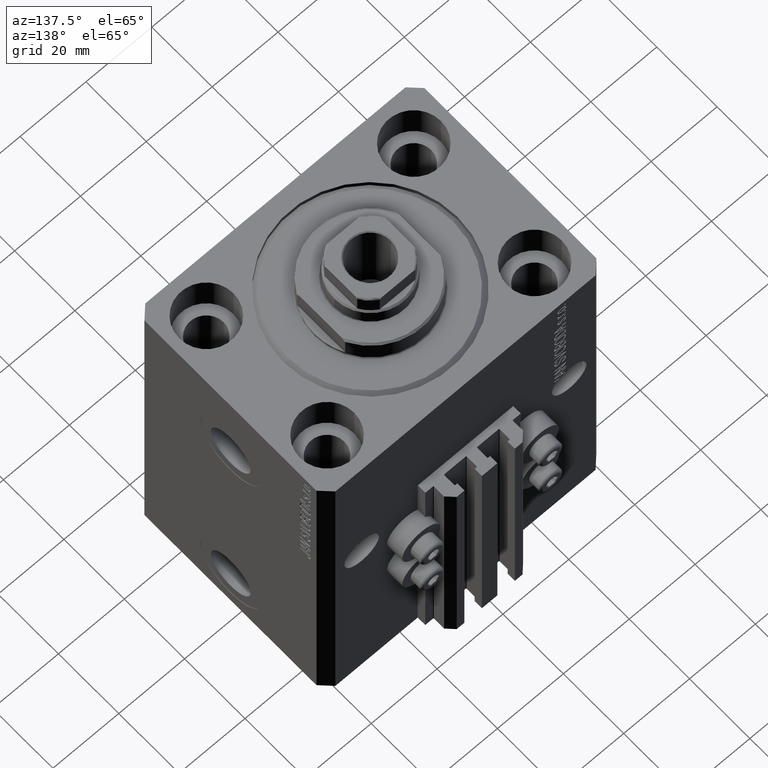
[diagram: clean part render]
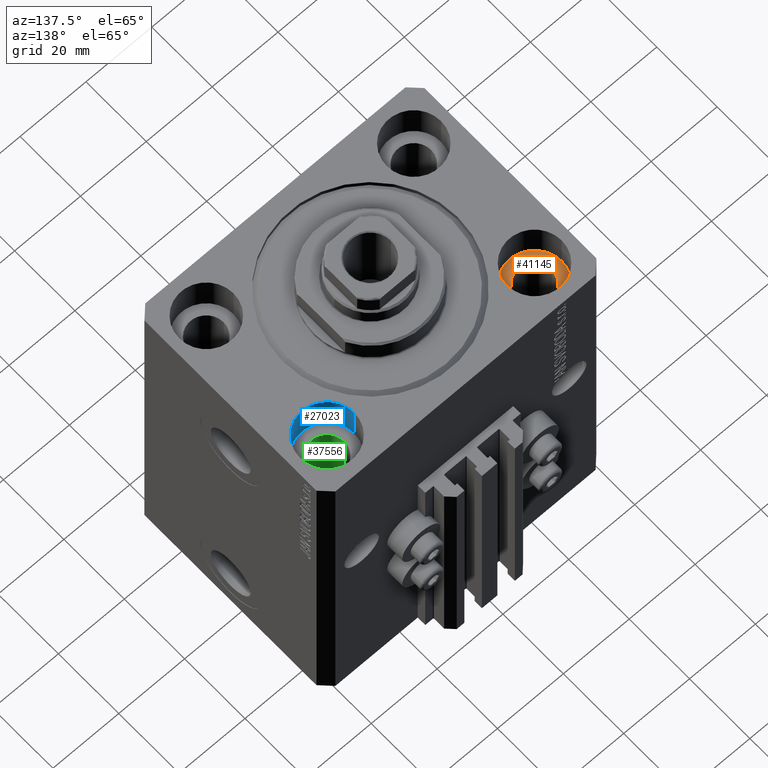
[diagram: same view with three faces highlighted in distinct colors, each labeled with its STEP entity id]
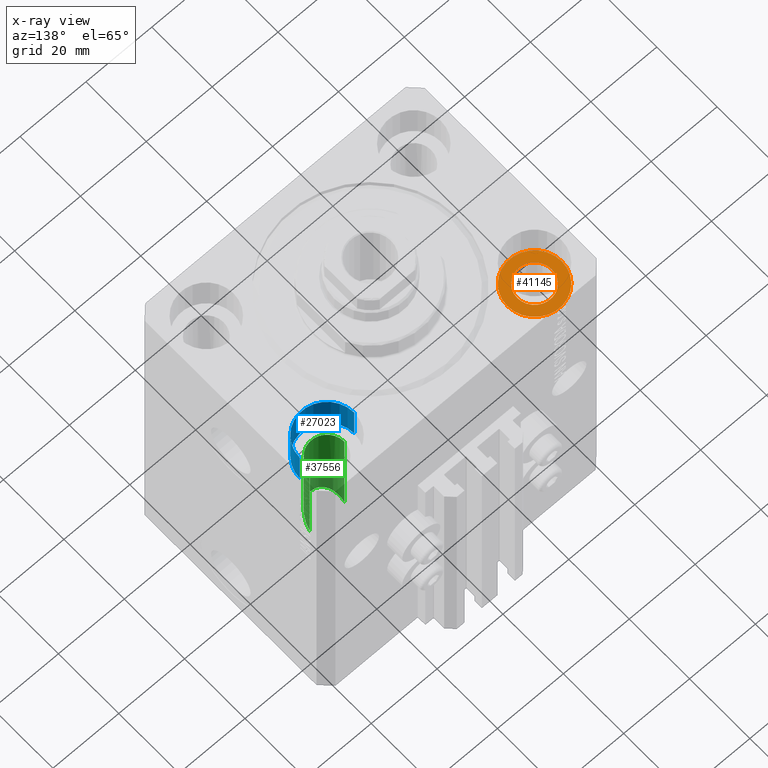
[diagram: x-ray of the same camera — body ghosted, the three highlighted faces saturated]
A machine part, auxiliary view with three faces highlighted in distinct colors.
The next image is the same camera in x-ray (body ghosted, the three faces saturated) — at least one of them is partly hidden behind the body in this view.
Their STEP definitions:

[orange] entity #41145 — the highlighted planar face has unit normal (0, 0, 1).
#1260 = VERTEX_POINT ( 'NONE', #19480 ) ;
#1480 = DIRECTION ( 'NONE',  ( 0.000000000000000000, 0.000000000000000000, 1.000000000000000000 ) ) ;
#1498 = DIRECTION ( 'NONE',  ( 1.000000000000000000, 0.000000000000000000, 0.000000000000000000 ) ) ;
#2207 = ORIENTED_EDGE ( 'NONE', *, *, #32252, .T. ) ;
#2680 = DIRECTION ( 'NONE',  ( 1.000000000000000000, 0.000000000000000000, -0.000000000000000000 ) ) ;
#2692 = ORIENTED_EDGE ( 'NONE', *, *, #45427, .T. ) ;
#5307 = CIRCLE ( 'NONE', #30149, 8.250000000000000000 ) ;
#6064 = VERTEX_POINT ( 'NONE', #35782 ) ;
#8805 = CARTESIAN_POINT ( 'NONE',  ( -31.50000000000000000, 20.00000000000000000, -11.00000000000000000 ) ) ;
#9158 = EDGE_CURVE ( 'NONE', #47078, #1260, #25269, .T. ) ;
#10219 = VERTEX_POINT ( 'NONE', #36517 ) ;
#12023 = AXIS2_PLACEMENT_3D ( 'NONE', #26776, #1480, #19499 ) ;
#12663 = EDGE_CURVE ( 'NONE', #1260, #47078, #14478, .T. ) ;
#14478 = CIRCLE ( 'NONE', #12023, 5.250000000000000888 ) ;
#15701 = CARTESIAN_POINT ( 'NONE',  ( -31.50000000000000000, 20.00000000000000000, -11.00000000000000000 ) ) ;
#15887 = CARTESIAN_POINT ( 'NONE',  ( -36.75000000000000000, 20.00000000000000000, -11.00000000000000000 ) ) ;
#17097 = DIRECTION ( 'NONE',  ( 1.000000000000000000, 0.000000000000000000, 0.000000000000000000 ) ) ;
#17768 = PLANE ( 'NONE',  #36356 ) ;
#19480 = CARTESIAN_POINT ( 'NONE',  ( -26.25000000000000000, 20.00000000000000000, -11.00000000000000000 ) ) ;
#19499 = DIRECTION ( 'NONE',  ( 1.000000000000000000, 0.000000000000000000, 0.000000000000000000 ) ) ;
#20486 = DIRECTION ( 'NONE',  ( 1.000000000000000000, 0.000000000000000000, 0.000000000000000000 ) ) ;
#25269 = CIRCLE ( 'NONE', #42358, 5.250000000000000888 ) ;
#26776 = CARTESIAN_POINT ( 'NONE',  ( -31.50000000000000000, 20.00000000000000000, -11.00000000000000000 ) ) ;
#27049 = DIRECTION ( 'NONE',  ( 0.000000000000000000, 0.000000000000000000, 1.000000000000000000 ) ) ;
#27975 = FACE_BOUND ( 'NONE', #31028, .T. ) ;
#28460 = FACE_OUTER_BOUND ( 'NONE', #32245, .T. ) ;
#30149 = AXIS2_PLACEMENT_3D ( 'NONE', #8805, #42370, #1498 ) ;
#30573 = ORIENTED_EDGE ( 'NONE', *, *, #9158, .F. ) ;
#31028 = EDGE_LOOP ( 'NONE', ( #35194, #30573 ) ) ;
#32245 = EDGE_LOOP ( 'NONE', ( #2692, #2207 ) ) ;
#32252 = EDGE_CURVE ( 'NONE', #10219, #6064, #38352, .T. ) ;
#32589 = CARTESIAN_POINT ( 'NONE',  ( -31.50000000000000000, 20.00000000000000000, -11.00000000000000000 ) ) ;
#35194 = ORIENTED_EDGE ( 'NONE', *, *, #12663, .F. ) ;
#35782 = CARTESIAN_POINT ( 'NONE',  ( -23.25000000000000000, 20.00000000000000000, -11.00000000000000000 ) ) ;
#36002 = DIRECTION ( 'NONE',  ( 0.000000000000000000, 0.000000000000000000, 1.000000000000000000 ) ) ;
#36356 = AXIS2_PLACEMENT_3D ( 'NONE', #32589, #36002, #2680 ) ;
#36517 = CARTESIAN_POINT ( 'NONE',  ( -39.75000000000000000, 20.00000000000000000, -11.00000000000000000 ) ) ;
#38352 = CIRCLE ( 'NONE', #44562, 8.250000000000000000 ) ;
#39471 = DIRECTION ( 'NONE',  ( 0.000000000000000000, 0.000000000000000000, 1.000000000000000000 ) ) ;
#41145 = ADVANCED_FACE ( 'NONE', ( #27975, #28460 ), #17768, .T. ) ;
#42358 = AXIS2_PLACEMENT_3D ( 'NONE', #42614, #27049, #20486 ) ;
#42370 = DIRECTION ( 'NONE',  ( 0.000000000000000000, 0.000000000000000000, 1.000000000000000000 ) ) ;
#42614 = CARTESIAN_POINT ( 'NONE',  ( -31.50000000000000000, 20.00000000000000000, -11.00000000000000000 ) ) ;
#44562 = AXIS2_PLACEMENT_3D ( 'NONE', #15701, #39471, #17097 ) ;
#45427 = EDGE_CURVE ( 'NONE', #6064, #10219, #5307, .T. ) ;
#47078 = VERTEX_POINT ( 'NONE', #15887 ) ;

[blue] entity #27023 — the highlighted cylindrical surface (partial cylindrical patch) has radius 8.25 mm, axis along (0, 0, 1).
#388 = CIRCLE ( 'NONE', #28365, 8.249999999999992895 ) ;
#1741 = DIRECTION ( 'NONE',  ( 1.000000000000000000, 0.000000000000000000, 0.000000000000000000 ) ) ;
#3389 = AXIS2_PLACEMENT_3D ( 'NONE', #10612, #11076, #7427 ) ;
#4493 = ORIENTED_EDGE ( 'NONE', *, *, #42063, .T. ) ;
#5518 = ORIENTED_EDGE ( 'NONE', *, *, #42584, .F. ) ;
#6752 = VERTEX_POINT ( 'NONE', #33847 ) ;
#7427 = DIRECTION ( 'NONE',  ( 1.000000000000000000, 0.000000000000000000, 0.000000000000000000 ) ) ;
#8311 = AXIS2_PLACEMENT_3D ( 'NONE', #19194, #27205, #30615 ) ;
#9162 = DIRECTION ( 'NONE',  ( -0.000000000000000000, -0.000000000000000000, 1.000000000000000000 ) ) ;
#9200 = EDGE_CURVE ( 'NONE', #13592, #34089, #388, .T. ) ;
#10612 = CARTESIAN_POINT ( 'NONE',  ( 31.50000000000000000, 20.00000000000001066, -11.00000000000000000 ) ) ;
#11076 = DIRECTION ( 'NONE',  ( -0.000000000000000000, -0.000000000000000000, 1.000000000000000000 ) ) ;
#11255 = ORIENTED_EDGE ( 'NONE', *, *, #38249, .T. ) ;
#12560 = CARTESIAN_POINT ( 'NONE',  ( 39.74999999999999289, 20.00000000000001066, -11.00000000000000000 ) ) ;
#13592 = VERTEX_POINT ( 'NONE', #39316 ) ;
#14732 = DIRECTION ( 'NONE',  ( -0.000000000000000000, -0.000000000000000000, 1.000000000000000000 ) ) ;
#16118 = CARTESIAN_POINT ( 'NONE',  ( 31.50000000000000000, 20.00000000000001066, -11.00000000000000000 ) ) ;
#16456 = LINE ( 'NONE', #12560, #27831 ) ;
#17255 = LINE ( 'NONE', #43036, #37788 ) ;
#18930 = VERTEX_POINT ( 'NONE', #45154 ) ;
#19194 = CARTESIAN_POINT ( 'NONE',  ( 31.50000000000000000, 20.00000000000001066, 0.000000000000000000 ) ) ;
#24596 = CARTESIAN_POINT ( 'NONE',  ( 39.74999999999999289, 20.00000000000001066, -11.00000000000000000 ) ) ;
#27023 = ADVANCED_FACE ( 'NONE', ( #28863 ), #37101, .F. ) ;
#27205 = DIRECTION ( 'NONE',  ( 0.000000000000000000, 0.000000000000000000, 1.000000000000000000 ) ) ;
#27831 = VECTOR ( 'NONE', #9162, 1000.000000000000000 ) ;
#28365 = AXIS2_PLACEMENT_3D ( 'NONE', #16118, #35317, #1741 ) ;
#28863 = FACE_OUTER_BOUND ( 'NONE', #41549, .T. ) ;
#29941 = ORIENTED_EDGE ( 'NONE', *, *, #9200, .F. ) ;
#30615 = DIRECTION ( 'NONE',  ( 1.000000000000000000, 0.000000000000000000, 0.000000000000000000 ) ) ;
#33847 = CARTESIAN_POINT ( 'NONE',  ( 39.74999999999999289, 20.00000000000001066, 0.000000000000000000 ) ) ;
#34089 = VERTEX_POINT ( 'NONE', #24596 ) ;
#35317 = DIRECTION ( 'NONE',  ( 0.000000000000000000, 0.000000000000000000, 1.000000000000000000 ) ) ;
#37101 = CYLINDRICAL_SURFACE ( 'NONE', #3389, 8.249999999999992895 ) ;
#37788 = VECTOR ( 'NONE', #14732, 1000.000000000000000 ) ;
#38249 = EDGE_CURVE ( 'NONE', #13592, #18930, #17255, .T. ) ;
#39316 = CARTESIAN_POINT ( 'NONE',  ( 23.25000000000000355, 20.00000000000001066, -11.00000000000000000 ) ) ;
#41549 = EDGE_LOOP ( 'NONE', ( #29941, #11255, #4493, #5518 ) ) ;
#42063 = EDGE_CURVE ( 'NONE', #18930, #6752, #47933, .T. ) ;
#42584 = EDGE_CURVE ( 'NONE', #34089, #6752, #16456, .T. ) ;
#43036 = CARTESIAN_POINT ( 'NONE',  ( 23.25000000000000355, 20.00000000000001066, -11.00000000000000000 ) ) ;
#45154 = CARTESIAN_POINT ( 'NONE',  ( 23.25000000000000355, 20.00000000000001066, 0.000000000000000000 ) ) ;
#47933 = CIRCLE ( 'NONE', #8311, 8.249999999999992895 ) ;

[green] entity #37556 — the highlighted cylindrical surface (edge-blend (fillet) strip) has radius 5.25 mm, axis along (0, 0, 1).
#1687 = CARTESIAN_POINT ( 'NONE',  ( 31.50000000000000000, 20.00000000000001066, -11.00000000000000000 ) ) ;
#2567 = CARTESIAN_POINT ( 'NONE',  ( 26.25000000000001066, 20.00000000000001066, -43.00000000000000000 ) ) ;
#2850 = AXIS2_PLACEMENT_3D ( 'NONE', #7889, #44631, #33912 ) ;
#3219 = DIRECTION ( 'NONE',  ( -0.000000000000000000, -0.000000000000000000, 1.000000000000000000 ) ) ;
#4624 = ORIENTED_EDGE ( 'NONE', *, *, #22385, .T. ) ;
#7889 = CARTESIAN_POINT ( 'NONE',  ( 31.50000000000000000, 20.00000000000001066, -103.0000000000000000 ) ) ;
#9870 = CARTESIAN_POINT ( 'NONE',  ( 26.25000000000001776, 9.500000000000023093, -32.50000000000000711 ) ) ;
#9958 = CARTESIAN_POINT ( 'NONE',  ( 36.75000000000000000, 20.00000000000001066, -103.0000000000000000 ) ) ;
#10205 = ORIENTED_EDGE ( 'NONE', *, *, #28007, .F. ) ;
#10579 = CARTESIAN_POINT ( 'NONE',  ( 36.75000000000000711, 20.00000000000001066, -43.00000000000000000 ) ) ;
#12539 = AXIS2_PLACEMENT_3D ( 'NONE', #1687, #38180, #42561 ) ;
#13172 = VERTEX_POINT ( 'NONE', #18417 ) ;
#14296 = VECTOR ( 'NONE', #40110, 1000.000000000000000 ) ;
#14609 = CARTESIAN_POINT ( 'NONE',  ( 26.25000000000000355, 20.00000000000001066, -11.00000000000000000 ) ) ;
#14957 = CYLINDRICAL_SURFACE ( 'NONE', #2850, 5.249999999999997335 ) ;
#17505 = LINE ( 'NONE', #9958, #14296 ) ;
#18343 = ORIENTED_EDGE ( 'NONE', *, *, #23916, .T. ) ;
#18417 = CARTESIAN_POINT ( 'NONE',  ( 26.25000000000001066, 20.00000000000001066, -43.00000000000000000 ) ) ;
#18740 = CIRCLE ( 'NONE', #12539, 5.249999999999997335 ) ;
#22385 = EDGE_CURVE ( 'NONE', #44419, #37520, #18740, .T. ) ;
#22968 = FACE_OUTER_BOUND ( 'NONE', #31246, .T. ) ;
#23916 = EDGE_CURVE ( 'NONE', #47894, #13172, #37218, .T. ) ;
#24458 = CARTESIAN_POINT ( 'NONE',  ( 36.75000000000000000, 9.500000000000023093, -32.50000000000000711 ) ) ;
#25120 = LINE ( 'NONE', #29957, #32474 ) ;
#26823 = ORIENTED_EDGE ( 'NONE', *, *, #41767, .T. ) ;
#28007 = EDGE_CURVE ( 'NONE', #47894, #37520, #17505, .T. ) ;
#29957 = CARTESIAN_POINT ( 'NONE',  ( 26.25000000000000355, 20.00000000000001066, -103.0000000000000000 ) ) ;
#31246 = EDGE_LOOP ( 'NONE', ( #18343, #26823, #4624, #10205 ) ) ;
#32474 = VECTOR ( 'NONE', #3219, 1000.000000000000000 ) ;
#32970 = CARTESIAN_POINT ( 'NONE',  ( 36.75000000000000000, 20.00000000000001066, -11.00000000000000000 ) ) ;
#33912 = DIRECTION ( 'NONE',  ( 1.000000000000000000, 0.000000000000000000, 0.000000000000000000 ) ) ;
#37218 =( BOUNDED_CURVE ( )  B_SPLINE_CURVE ( 3, ( #10579, #24458, #9870, #2567 ),
 .UNSPECIFIED., .F., .F. ) 
 B_SPLINE_CURVE_WITH_KNOTS ( ( 4, 4 ),
 ( 4.712388980384689674, 7.853981633974482790 ),
 .UNSPECIFIED. ) 
 CURVE ( )  GEOMETRIC_REPRESENTATION_ITEM ( )  RATIONAL_B_SPLINE_CURVE ( ( 1.000000000000000000, 0.3333333333333333703, 0.3333333333333333703, 1.000000000000000000 ) ) 
 REPRESENTATION_ITEM ( '' )  );
#37520 = VERTEX_POINT ( 'NONE', #32970 ) ;
#37556 = ADVANCED_FACE ( 'NONE', ( #22968 ), #14957, .F. ) ;
#38180 = DIRECTION ( 'NONE',  ( 0.000000000000000000, 0.000000000000000000, 1.000000000000000000 ) ) ;
#38335 = CARTESIAN_POINT ( 'NONE',  ( 36.75000000000000711, 20.00000000000001066, -43.00000000000000000 ) ) ;
#40110 = DIRECTION ( 'NONE',  ( -0.000000000000000000, -0.000000000000000000, 1.000000000000000000 ) ) ;
#41767 = EDGE_CURVE ( 'NONE', #13172, #44419, #25120, .T. ) ;
#42561 = DIRECTION ( 'NONE',  ( 1.000000000000000000, 0.000000000000000000, 0.000000000000000000 ) ) ;
#44419 = VERTEX_POINT ( 'NONE', #14609 ) ;
#44631 = DIRECTION ( 'NONE',  ( -0.000000000000000000, -0.000000000000000000, 1.000000000000000000 ) ) ;
#47894 = VERTEX_POINT ( 'NONE', #38335 ) ;